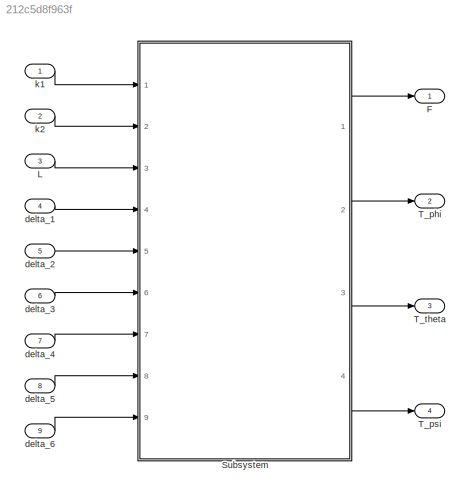
MODEL slx_212c5d8f963f
KIND model
CONFIG AbsTol = auto
CONFIG EnableMultiTasking = off
CONFIG FixedStep = auto
CONFIG MaxStep = auto
CONFIG MinStep = auto
CONFIG RelTol = 1e-3
CONFIG SampleTimeConstraint = Unconstrained
CONFIG Solver = VariableStepAuto
CONFIG SolverName = VariableStepAuto
CONFIG StartTime = 0.0
CONFIG StopTime = 10.0
WORKSPACE source: MAT-file member
WORKSPACE MCOS: class17 (value not decoded)
BLOCK [Outport] F
  IconDisplay = Port number
BLOCK [Inport] L
  IconDisplay = Port number
  Port = 3
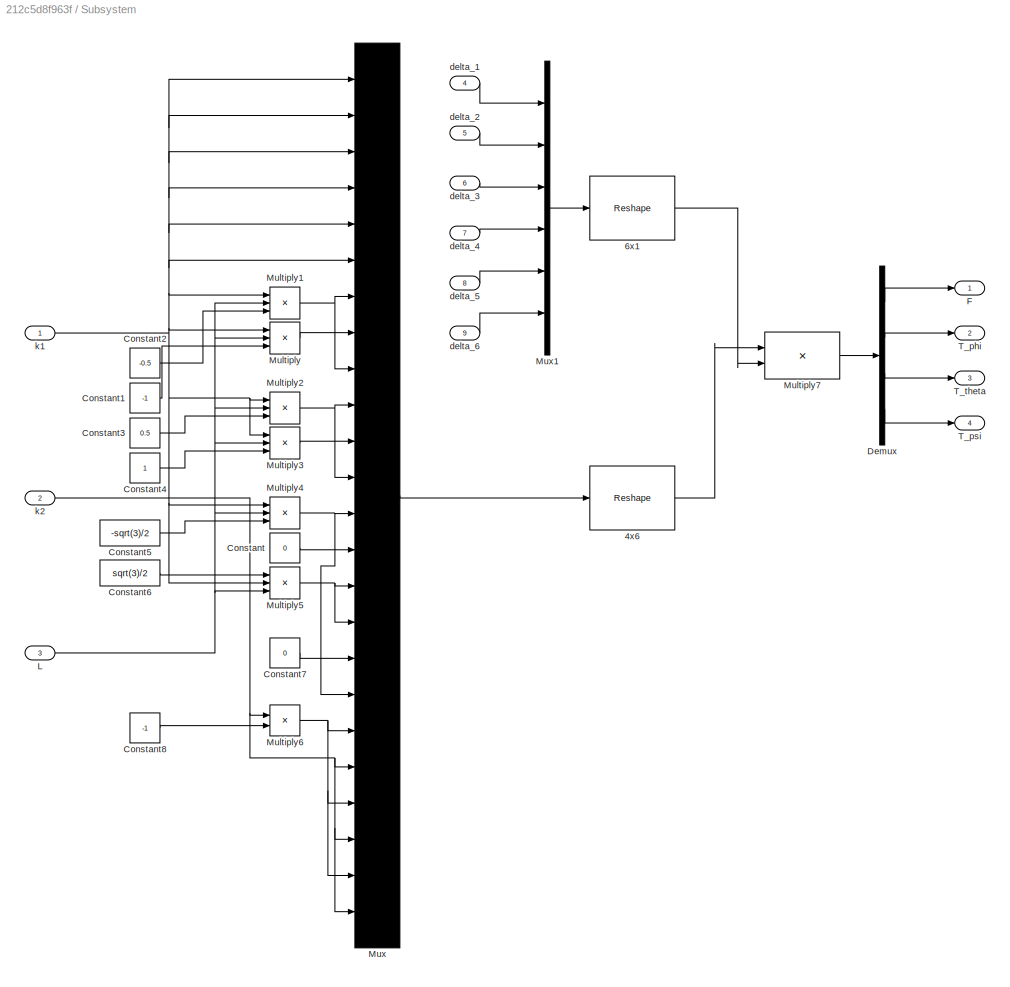
BLOCK [SubSystem] Subsystem
  Ports = [9, 4]
  RequestExecContextInheritance = off
BLOCK [Reshape] Subsystem/4x6
  OutputDimensionality = Customize
  OutputDimensions = [4,6]
  Ports = [1, 1]
BLOCK [Reshape] Subsystem/6x1
  OutputDimensionality = Customize
  OutputDimensions = [6,1]
  Ports = [1, 1]
BLOCK [Constant] Subsystem/Constant
  Value = 0
  VectorParams1D = off
BLOCK [Constant] Subsystem/Constant1
  Value = -1
  VectorParams1D = off
BLOCK [Constant] Subsystem/Constant2
  Value = -0.5
  VectorParams1D = off
BLOCK [Constant] Subsystem/Constant3
  Value = 0.5
  VectorParams1D = off
BLOCK [Constant] Subsystem/Constant4
  VectorParams1D = off
BLOCK [Constant] Subsystem/Constant5
  Value = -sqrt(3)/2
  VectorParams1D = off
BLOCK [Constant] Subsystem/Constant6
  Value = sqrt(3)/2
  VectorParams1D = off
BLOCK [Constant] Subsystem/Constant7
  Value = 0
  VectorParams1D = off
BLOCK [Constant] Subsystem/Constant8
  Value = -1
  VectorParams1D = off
BLOCK [Demux] Subsystem/Demux
  DisplayOption = bar
  Ports = [1, 4]
BLOCK [Outport] Subsystem/F
  IconDisplay = Port number
BLOCK [Inport] Subsystem/L
  IconDisplay = Port number
  Port = 3
BLOCK [Product] Subsystem/Multiply
  InputSameDT = off
  Inputs = 3
  OutDataTypeStr = Inherit: Inherit via internal rule
  Ports = [3, 1]
  RndMeth = Floor
  SaturateOnIntegerOverflow = off
BLOCK [Product] Subsystem/Multiply1
  InputSameDT = off
  Inputs = 3
  OutDataTypeStr = Inherit: Inherit via internal rule
  Ports = [3, 1]
  RndMeth = Floor
  SaturateOnIntegerOverflow = off
BLOCK [Product] Subsystem/Multiply2
  InputSameDT = off
  Inputs = 3
  OutDataTypeStr = Inherit: Inherit via internal rule
  Ports = [3, 1]
  RndMeth = Floor
  SaturateOnIntegerOverflow = off
BLOCK [Product] Subsystem/Multiply3
  InputSameDT = off
  Inputs = 3
  OutDataTypeStr = Inherit: Inherit via internal rule
  Ports = [3, 1]
  RndMeth = Floor
  SaturateOnIntegerOverflow = off
BLOCK [Product] Subsystem/Multiply4
  InputSameDT = off
  Inputs = 3
  OutDataTypeStr = Inherit: Inherit via internal rule
  Ports = [3, 1]
  RndMeth = Floor
  SaturateOnIntegerOverflow = off
BLOCK [Product] Subsystem/Multiply5
  InputSameDT = off
  Inputs = 3
  OutDataTypeStr = Inherit: Inherit via internal rule
  Ports = [3, 1]
  RndMeth = Floor
  SaturateOnIntegerOverflow = off
BLOCK [Product] Subsystem/Multiply6
  InputSameDT = off
  OutDataTypeStr = Inherit: Inherit via internal rule
  Ports = [2, 1]
  RndMeth = Floor
  SaturateOnIntegerOverflow = off
BLOCK [Product] Subsystem/Multiply7
  InputSameDT = off
  Multiplication = Matrix(*)
  OutDataTypeStr = Inherit: Inherit via internal rule
  Ports = [2, 1]
  RndMeth = Floor
  SaturateOnIntegerOverflow = off
BLOCK [Mux] Subsystem/Mux
  DisplayOption = signals
  Inputs = 24
  Ports = [24, 1]
BLOCK [Mux] Subsystem/Mux1
  DisplayOption = bar
  Inputs = 6
  Ports = [6, 1]
BLOCK [Outport] Subsystem/T_phi
  IconDisplay = Port number
  Port = 2
BLOCK [Outport] Subsystem/T_psi
  IconDisplay = Port number
  Port = 4
BLOCK [Outport] Subsystem/T_theta
  IconDisplay = Port number
  Port = 3
BLOCK [Inport] Subsystem/delta_1
  IconDisplay = Port number
  Port = 4
BLOCK [Inport] Subsystem/delta_2
  IconDisplay = Port number
  Port = 5
BLOCK [Inport] Subsystem/delta_3
  IconDisplay = Port number
  Port = 6
BLOCK [Inport] Subsystem/delta_4
  IconDisplay = Port number
  Port = 7
BLOCK [Inport] Subsystem/delta_5
  IconDisplay = Port number
  Port = 8
BLOCK [Inport] Subsystem/delta_6
  IconDisplay = Port number
  Port = 9
BLOCK [Inport] Subsystem/k1
  IconDisplay = Port number
BLOCK [Inport] Subsystem/k2
  IconDisplay = Port number
  Port = 2
BLOCK [Outport] T_phi
  IconDisplay = Port number
  Port = 2
BLOCK [Outport] T_psi
  IconDisplay = Port number
  Port = 4
BLOCK [Outport] T_theta
  IconDisplay = Port number
  Port = 3
BLOCK [Inport] delta_1
  IconDisplay = Port number
  Port = 4
BLOCK [Inport] delta_2
  IconDisplay = Port number
  Port = 5
BLOCK [Inport] delta_3
  IconDisplay = Port number
  Port = 6
BLOCK [Inport] delta_4
  IconDisplay = Port number
  Port = 7
BLOCK [Inport] delta_5
  IconDisplay = Port number
  Port = 8
BLOCK [Inport] delta_6
  IconDisplay = Port number
  Port = 9
BLOCK [Inport] k1
  IconDisplay = Port number
BLOCK [Inport] k2
  IconDisplay = Port number
  Port = 2
LINE L:1 -> Subsystem:3
LINE Subsystem/4x6:1 -> Subsystem/Multiply7:1
LINE Subsystem/6x1:1 -> Subsystem/Multiply7:2
LINE Subsystem/Constant1:1 -> Subsystem/Multiply:3
LINE Subsystem/Constant2:1 -> Subsystem/Multiply1:3
LINE Subsystem/Constant3:1 -> Subsystem/Multiply2:3
LINE Subsystem/Constant4:1 -> Subsystem/Multiply3:3
LINE Subsystem/Constant5:1 -> Subsystem/Multiply4:3
LINE Subsystem/Constant6:1 -> Subsystem/Multiply5:1
LINE Subsystem/Constant7:1 -> Subsystem/Mux:17
LINE Subsystem/Constant8:1 -> Subsystem/Multiply6:2
LINE Subsystem/Constant:1 -> Subsystem/Mux:14
LINE Subsystem/Demux:1 -> Subsystem/F:1
LINE Subsystem/Demux:2 -> Subsystem/T_phi:1
LINE Subsystem/Demux:3 -> Subsystem/T_theta:1
LINE Subsystem/Demux:4 -> Subsystem/T_psi:1
NET Subsystem/L:1 -> Subsystem/Multiply1:2, Subsystem/Multiply2:2, Subsystem/Multiply3:2, Subsystem/Multiply4:2, Subsystem/Multiply5:3, Subsystem/Multiply:2
NET Subsystem/Multiply1:1 -> Subsystem/Mux:7, Subsystem/Mux:9
NET Subsystem/Multiply2:1 -> Subsystem/Mux:10, Subsystem/Mux:12
LINE Subsystem/Multiply3:1 -> Subsystem/Mux:11
NET Subsystem/Multiply4:1 -> Subsystem/Mux:13, Subsystem/Mux:18
NET Subsystem/Multiply5:1 -> Subsystem/Mux:15, Subsystem/Mux:16
NET Subsystem/Multiply6:1 -> Subsystem/Mux:19, Subsystem/Mux:21, Subsystem/Mux:23
LINE Subsystem/Multiply7:1 -> Subsystem/Demux:1
LINE Subsystem/Multiply:1 -> Subsystem/Mux:8
LINE Subsystem/Mux1:1 -> Subsystem/6x1:1
LINE Subsystem/Mux:1 -> Subsystem/4x6:1
LINE Subsystem/delta_1:1 -> Subsystem/Mux1:1
LINE Subsystem/delta_2:1 -> Subsystem/Mux1:2
LINE Subsystem/delta_3:1 -> Subsystem/Mux1:3
LINE Subsystem/delta_4:1 -> Subsystem/Mux1:4
LINE Subsystem/delta_5:1 -> Subsystem/Mux1:5
LINE Subsystem/delta_6:1 -> Subsystem/Mux1:6
NET Subsystem/k1:1 -> Subsystem/Multiply1:1, Subsystem/Multiply2:1, Subsystem/Multiply3:1, Subsystem/Multiply4:1, Subsystem/Multiply5:2, Subsystem/Multiply:1, Subsystem/Mux:1, Subsystem/Mux:2, Subsystem/Mux:3, Subsystem/Mux:4, Subsystem/Mux:5, Subsystem/Mux:6
NET Subsystem/k2:1 -> Subsystem/Multiply6:1, Subsystem/Mux:20, Subsystem/Mux:22, Subsystem/Mux:24
LINE Subsystem:1 -> F:1
LINE Subsystem:2 -> T_phi:1
LINE Subsystem:3 -> T_theta:1
LINE Subsystem:4 -> T_psi:1
LINE delta_1:1 -> Subsystem:4
LINE delta_2:1 -> Subsystem:5
LINE delta_3:1 -> Subsystem:6
LINE delta_4:1 -> Subsystem:7
LINE delta_5:1 -> Subsystem:8
LINE delta_6:1 -> Subsystem:9
LINE k1:1 -> Subsystem:1
LINE k2:1 -> Subsystem:2
note: NET lines group one-source signal fan-out (src -> all destinations, sorted); 1:1 wires keep LINE
